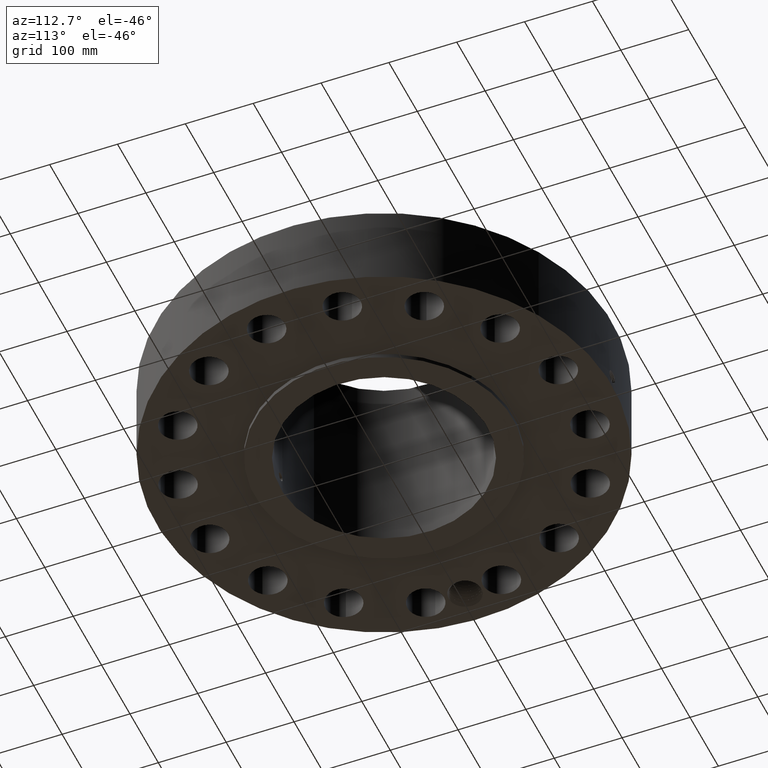
[diagram: clean part render]
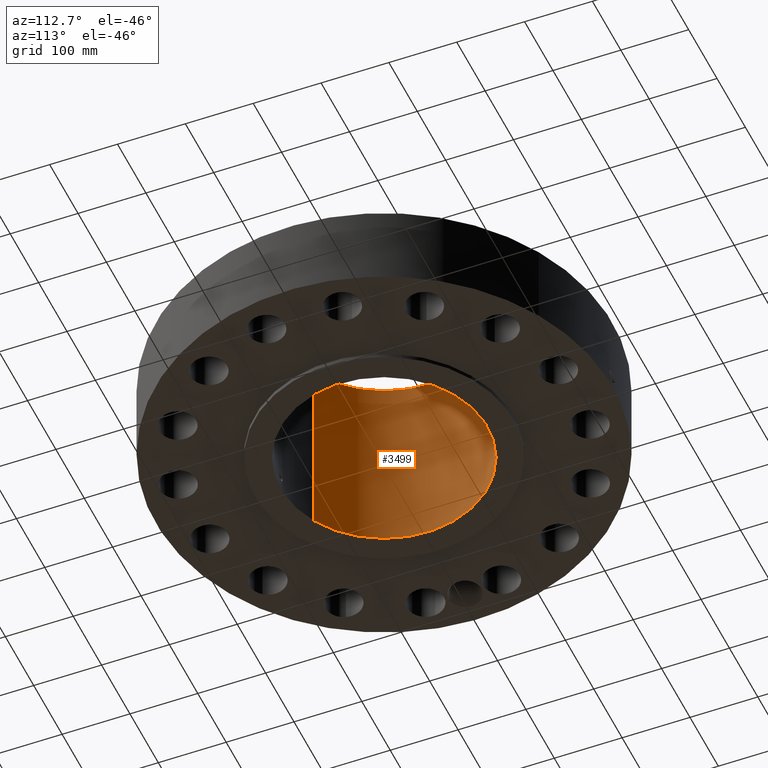
[diagram: same view with one face highlighted and labeled with its STEP entity id]
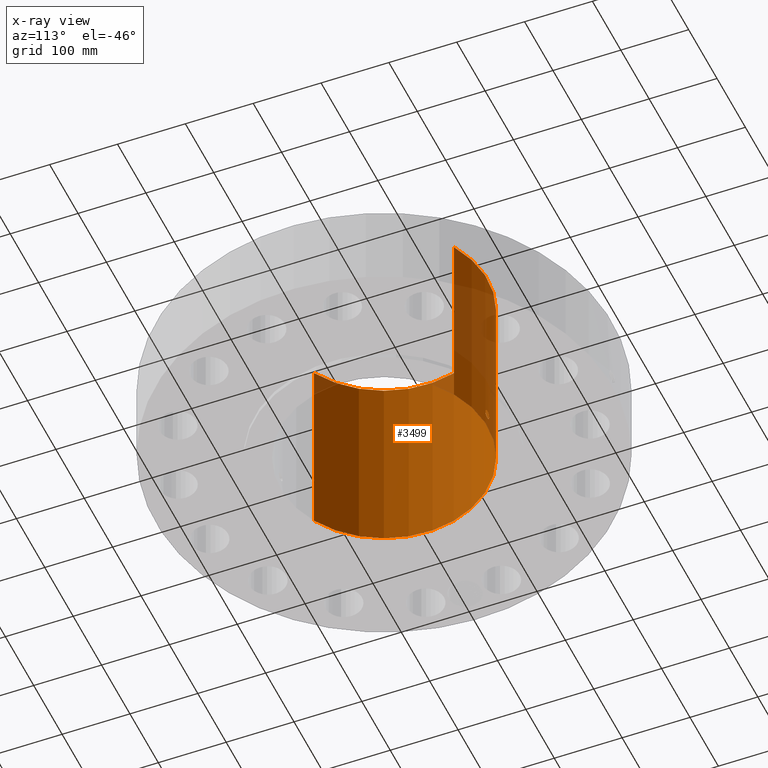
[diagram: x-ray of the same camera — body ghosted, the highlighted face saturated]
A machine part, auxiliary view. The second image highlights one B-rep face of the part: STEP entity #3499.
The next image is the same camera in x-ray: the body ghosted, the highlighted face saturated — about 16% of this face is hidden behind the body in this view.
In plain terms, the highlighted cylindrical surface (partial cylindrical patch) has radius 152.4 mm, axis along (0, 0, -1).
Its self-contained STEP definition (entity closure, byte-faithful):
#2630=AXIS2_PLACEMENT_3D('Circle Axis2P3D',#2628,#2629,$) ;
#3376=AXIS2_PLACEMENT_3D('Cylinder Axis2P3D',#3373,#3374,#3375) ;
#3448=AXIS2_PLACEMENT_3D('Circle Axis2P3D',#3446,#3447,$) ;
#2623=CARTESIAN_POINT('Vertex',(2.87655323164,5.26549537136,-2.12603338259E-014)) ;
#2625=CARTESIAN_POINT('Vertex',(-2.87655323164,-5.26549537136,-2.12603338259E-014)) ;
#2628=CARTESIAN_POINT('Axis2P3D Location',(0.,0.,0.)) ;
#3373=CARTESIAN_POINT('Axis2P3D Location',(0.,0.,5.68500000002)) ;
#3382=CARTESIAN_POINT('Vertex',(2.87655323164,5.26549537136,11.37)) ;
#3384=CARTESIAN_POINT('Vertex',(-2.87655323164,-5.26549537136,11.37)) ;
#3387=CARTESIAN_POINT('Line Origine',(2.87655323164,5.26549537136,5.68500000002)) ;
#3392=CARTESIAN_POINT('Line Origine',(-2.87655323164,-5.26549537136,5.68500000002)) ;
#3446=CARTESIAN_POINT('Axis2P3D Location',(0.,0.,11.37)) ;
#3458=CARTESIAN_POINT('Control Point',(0.219395640473,5.99598745439,1.05985638466)) ;
#3459=CARTESIAN_POINT('Control Point',(0.206921629776,5.99644388356,1.08268990808)) ;
#3460=CARTESIAN_POINT('Control Point',(0.191477780327,5.99697649836,1.10389945681)) ;
#3461=CARTESIAN_POINT('Control Point',(0.173343976079,5.99754416114,1.12297163386)) ;
#3462=CARTESIAN_POINT('Control Point',(0.112128177184,5.99918620401,1.17245500395)) ;
#3463=CARTESIAN_POINT('Control Point',(0.0349673347077,6.00025303579,1.19597696768)) ;
#3464=CARTESIAN_POINT('Control Point',(-0.019575711304,6.00033259377,1.19761228425)) ;
#3465=CARTESIAN_POINT('Control Point',(-0.124165650289,5.99915787174,1.1724620159)) ;
#3466=CARTESIAN_POINT('Control Point',(-0.203213264289,5.99672716909,1.09953266411)) ;
#3467=CARTESIAN_POINT('Control Point',(-0.232185259956,5.99553089066,1.05330752746)) ;
#3468=CARTESIAN_POINT('Control Point',(-0.255836354934,5.99454665267,0.975155321549)) ;
#3469=CARTESIAN_POINT('Control Point',(-0.248290142151,5.99486042488,0.895776978913)) ;
#3470=CARTESIAN_POINT('Control Point',(-0.242056190607,5.99512342585,0.869202695411)) ;
#3471=CARTESIAN_POINT('Control Point',(-0.232320000164,5.99551454677,0.843801497077)) ;
#3472=CARTESIAN_POINT('Control Point',(-0.219395640473,5.99598745439,0.820143615352)) ;
#3473=CARTESIAN_POINT('Vertex',(0.219395640473,5.99598745439,1.05985638466)) ;
#3475=CARTESIAN_POINT('Vertex',(-0.219395640473,5.99598745439,0.820143615352)) ;
#3479=CARTESIAN_POINT('Control Point',(-0.219395640473,5.99598745439,0.820143615352)) ;
#3480=CARTESIAN_POINT('Control Point',(-0.206921629792,5.99644388356,0.797310091959)) ;
#3481=CARTESIAN_POINT('Control Point',(-0.191477780366,5.99697649836,0.776100543253)) ;
#3482=CARTESIAN_POINT('Control Point',(-0.173343976025,5.99754416114,0.757028366101)) ;
#3483=CARTESIAN_POINT('Control Point',(-0.112128177144,5.99918620401,0.707544996038)) ;
#3484=CARTESIAN_POINT('Control Point',(-0.03496733469,6.00025303579,0.684023032324)) ;
#3485=CARTESIAN_POINT('Control Point',(0.0195757112919,6.00033259377,0.682387715756)) ;
#3486=CARTESIAN_POINT('Control Point',(0.124165650314,5.99915787174,0.707537984111)) ;
#3487=CARTESIAN_POINT('Control Point',(0.203213264337,5.99672716909,0.780467335936)) ;
#3488=CARTESIAN_POINT('Control Point',(0.232185259939,5.99553089066,0.826692472487)) ;
#3489=CARTESIAN_POINT('Control Point',(0.255836354929,5.99454665267,0.904844678404)) ;
#3490=CARTESIAN_POINT('Control Point',(0.248290142156,5.99486042488,0.984223021042)) ;
#3491=CARTESIAN_POINT('Control Point',(0.242056190587,5.99512342585,1.01079730465)) ;
#3492=CARTESIAN_POINT('Control Point',(0.232320000151,5.99551454677,1.03619850295)) ;
#3493=CARTESIAN_POINT('Control Point',(0.219395640473,5.99598745439,1.05985638466)) ;
#2629=DIRECTION('Axis2P3D Direction',(0.,0.,-0.0393700787402)) ;
#3374=DIRECTION('Axis2P3D Direction',(0.,0.,-0.0393700787402)) ;
#3375=DIRECTION('Axis2P3D XDirection',(-0.0188750212049,-0.0345504945626,0.)) ;
#3388=DIRECTION('Vector Direction',(0.,0.,-0.0393700787402)) ;
#3393=DIRECTION('Vector Direction',(0.,0.,-0.0393700787402)) ;
#3447=DIRECTION('Axis2P3D Direction',(0.,0.,-0.0393700787402)) ;
#3389=VECTOR('Line Direction',#3388,0.0393700787402) ;
#3394=VECTOR('Line Direction',#3393,0.0393700787402) ;
#3452=ORIENTED_EDGE('',*,*,#3450,.F.) ;
#3453=ORIENTED_EDGE('',*,*,#3396,.T.) ;
#3454=ORIENTED_EDGE('',*,*,#2632,.T.) ;
#3455=ORIENTED_EDGE('',*,*,#3391,.F.) ;
#3496=ORIENTED_EDGE('',*,*,#3477,.F.) ;
#3497=ORIENTED_EDGE('',*,*,#3494,.F.) ;
#3498=FACE_BOUND('',#3495,.T.) ;
#3499=ADVANCED_FACE('PartBody',(#3456,#3498),#3377,.F.) ;
#3457=B_SPLINE_CURVE_WITH_KNOTS('',5,(#3458,#3459,#3460,#3461,#3462,#3463,#3464,#3465,#3466,#3467,#3468,#3469,#3470,#3471,#3472),.UNSPECIFIED.,.F.,.U.,(6,3,3,3,6),(0.,4.6738038249,14.0224404843,23.3724485752,28.214990659),.UNSPECIFIED.) ;
#3478=B_SPLINE_CURVE_WITH_KNOTS('',5,(#3479,#3480,#3481,#3482,#3483,#3484,#3485,#3486,#3487,#3488,#3489,#3490,#3491,#3492,#3493),.UNSPECIFIED.,.F.,.U.,(6,3,3,3,6),(0.,4.67380381898,14.0224404797,23.372448576,28.214990655),.UNSPECIFIED.) ;
#2631=CIRCLE('generated circle',#2630,6.00000000002) ;
#3449=CIRCLE('generated circle',#3448,6.00000000002) ;
#3377=CYLINDRICAL_SURFACE('generated cylinder',#3376,6.00000000002) ;
#2632=EDGE_CURVE('',#2626,#2624,#2631,.T.) ;
#3391=EDGE_CURVE('',#3383,#2624,#3390,.T.) ;
#3396=EDGE_CURVE('',#3385,#2626,#3395,.T.) ;
#3450=EDGE_CURVE('',#3385,#3383,#3449,.T.) ;
#3477=EDGE_CURVE('',#3474,#3476,#3457,.T.) ;
#3494=EDGE_CURVE('',#3476,#3474,#3478,.T.) ;
#3451=EDGE_LOOP('',(#3452,#3453,#3454,#3455)) ;
#3495=EDGE_LOOP('',(#3496,#3497)) ;
#3456=FACE_OUTER_BOUND('',#3451,.T.) ;
#3390=LINE('Line',#3387,#3389) ;
#3395=LINE('Line',#3392,#3394) ;
#2624=VERTEX_POINT('',#2623) ;
#2626=VERTEX_POINT('',#2625) ;
#3383=VERTEX_POINT('',#3382) ;
#3385=VERTEX_POINT('',#3384) ;
#3474=VERTEX_POINT('',#3473) ;
#3476=VERTEX_POINT('',#3475) ;